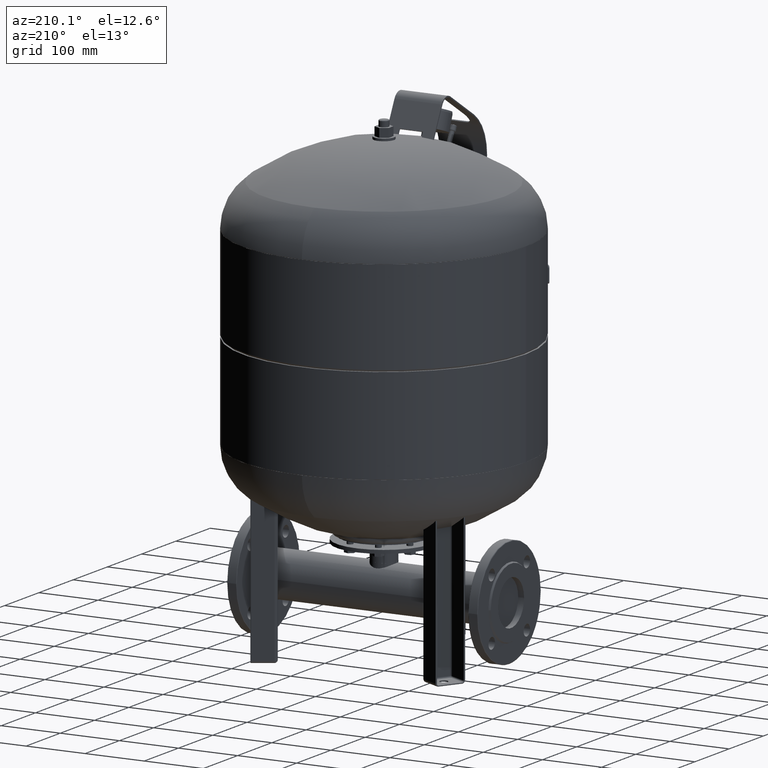
[diagram: clean part render]
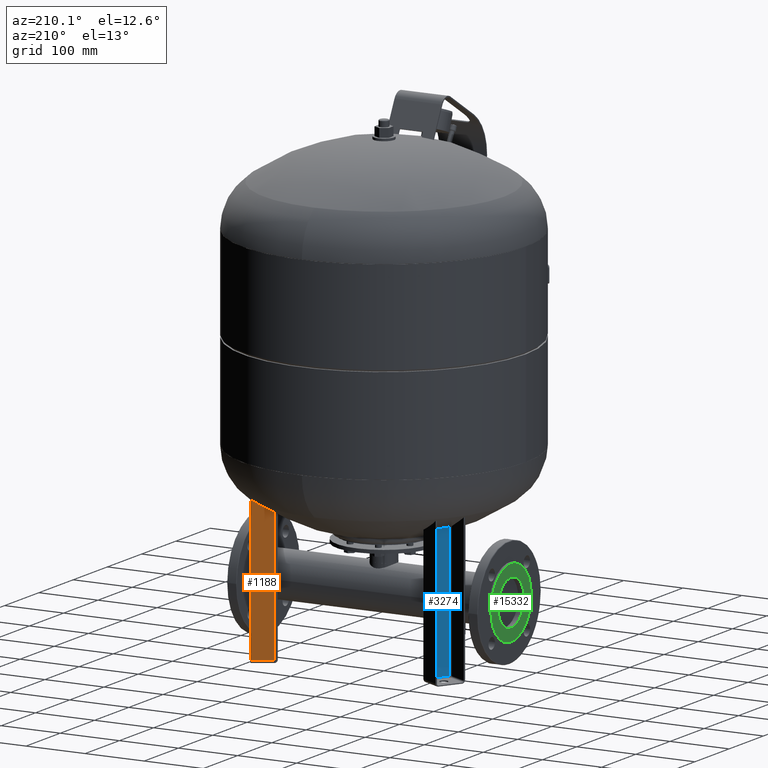
[diagram: same view with three faces highlighted in distinct colors, each labeled with its STEP entity id]
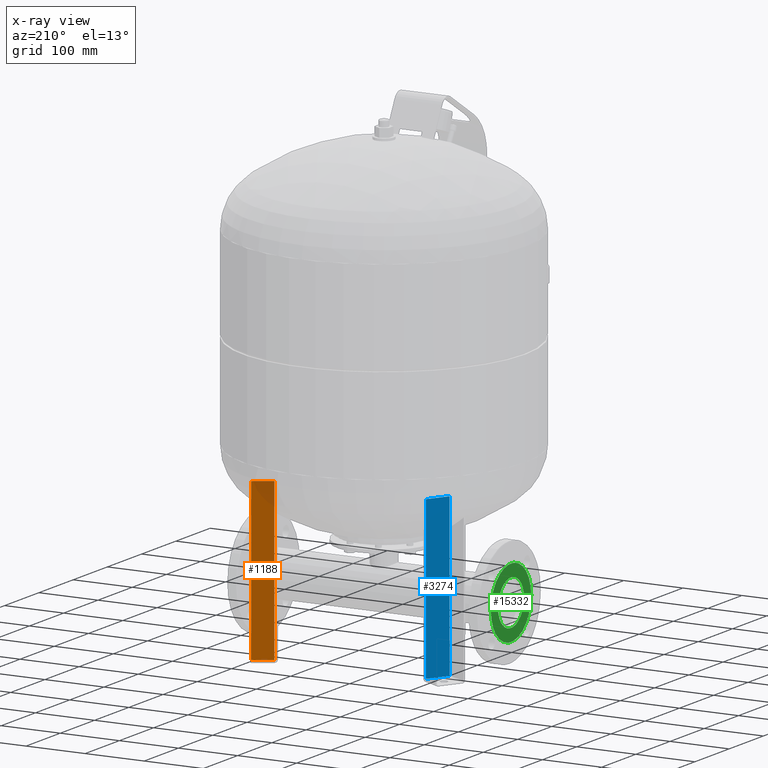
[diagram: x-ray of the same camera — body ghosted, the three highlighted faces saturated]
A machine part, auxiliary view with three faces highlighted in distinct colors.
The next image is the same camera in x-ray (body ghosted, the three faces saturated) — at least one of them is partly hidden behind the body in this view.
Their STEP definitions:

[orange] entity #1188 — the highlighted planar face has unit normal (-0.5, 0.866, 0).
#250=CARTESIAN_POINT('',(155.941941036073360,118.900635094610920,274.0));
#251=VERTEX_POINT('',#250);
#259=CARTESIAN_POINT('',(126.497077307402440,101.900635094610920,274.0));
#260=VERTEX_POINT('',#259);
#261=CARTESIAN_POINT('',(126.497077307402440,101.900635094610920,274.0));
#262=DIRECTION('',(0.866025403784439,0.500000000000000,0.0));
#263=VECTOR('',#262,34.000000000000007);
#264=LINE('',#261,#263);
#265=EDGE_CURVE('',#260,#251,#264,.T.);
#695=CARTESIAN_POINT('',(155.941941036073330,118.900635094610920,5.000000000000004));
#696=VERTEX_POINT('',#695);
#723=CARTESIAN_POINT('',(155.941941036073330,118.900635094610920,5.000000000000004));
#724=DIRECTION('',(0.0,0.0,1.0));
#725=VECTOR('',#724,269.0);
#726=LINE('',#723,#725);
#727=EDGE_CURVE('',#696,#251,#726,.T.);
#923=CARTESIAN_POINT('',(126.497077307402440,101.900635094610920,5.000000000000004));
#924=VERTEX_POINT('',#923);
#932=CARTESIAN_POINT('',(126.497077307402440,101.900635094610920,5.000000000000004));
#933=DIRECTION('',(0.866025403784438,0.500000000000000,0.0));
#934=VECTOR('',#933,33.999999999999986);
#935=LINE('',#932,#934);
#936=EDGE_CURVE('',#924,#696,#935,.T.);
#1058=CARTESIAN_POINT('',(126.497077307402440,101.900635094610920,5.000000000000004));
#1059=DIRECTION('',(0.0,0.0,1.0));
#1060=VECTOR('',#1059,269.0);
#1061=LINE('',#1058,#1060);
#1062=EDGE_CURVE('',#924,#260,#1061,.T.);
#1177=CARTESIAN_POINT('',(122.166950288480240,99.400635094610919,4.592425E-015));
#1178=DIRECTION('',(-0.500000000000000,0.866025403784439,1.836970E-016));
#1179=DIRECTION('',(-0.866025403784439,-0.500000000000000,-2.039447E-032));
#1180=AXIS2_PLACEMENT_3D('',#1177,#1178,#1179);
#1181=PLANE('',#1180);
#1182=ORIENTED_EDGE('',*,*,#727,.F.);
#1183=ORIENTED_EDGE('',*,*,#936,.F.);
#1184=ORIENTED_EDGE('',*,*,#1062,.T.);
#1185=ORIENTED_EDGE('',*,*,#265,.T.);
#1186=EDGE_LOOP('',(#1182,#1183,#1184,#1185));
#1187=FACE_OUTER_BOUND('',#1186,.T.);
#1188=ADVANCED_FACE('',(#1187),#1181,.T.);

[blue] entity #3274 — the highlighted planar face has unit normal (0.866, -0.5, -0).
#2327=CARTESIAN_POINT('',(-126.832013797941230,96.320508075688835,274.0));
#2328=VERTEX_POINT('',#2327);
#2336=CARTESIAN_POINT('',(-146.832013797941220,61.679491924311279,274.0));
#2337=VERTEX_POINT('',#2336);
#2338=CARTESIAN_POINT('',(-146.832013797941220,61.679491924311279,274.0));
#2339=DIRECTION('',(0.500000000000000,0.866025403784439,0.0));
#2340=VECTOR('',#2339,40.0);
#2341=LINE('',#2338,#2340);
#2342=EDGE_CURVE('',#2337,#2328,#2341,.T.);
#2879=CARTESIAN_POINT('',(-146.832013797941220,61.679491924311286,4.500000000000004));
#2880=VERTEX_POINT('',#2879);
#2888=CARTESIAN_POINT('',(-126.832013797941230,96.320508075688835,4.499999999999996));
#2889=VERTEX_POINT('',#2888);
#2890=CARTESIAN_POINT('',(-146.832013797941220,61.679491924311286,4.500000000000004));
#2891=DIRECTION('',(0.500000000000000,0.866025403784439,-1.776357E-016));
#2892=VECTOR('',#2891,39.999999999999993);
#2893=LINE('',#2890,#2892);
#2894=EDGE_CURVE('',#2880,#2889,#2893,.T.);
#3247=CARTESIAN_POINT('',(-126.832013797941230,96.320508075688835,4.499999999999996));
#3248=DIRECTION('',(0.0,0.0,1.0));
#3249=VECTOR('',#3248,269.500000000000000);
#3250=LINE('',#3247,#3249);
#3251=EDGE_CURVE('',#2889,#2328,#3250,.T.);
#3258=CARTESIAN_POINT('',(-125.582013797941230,98.485571585149927,1.999999999999996));
#3259=DIRECTION('',(0.866025403784439,-0.500000000000000,-5.438524E-032));
#3260=DIRECTION('',(0.500000000000000,0.866025403784439,-1.836970E-016));
#3261=AXIS2_PLACEMENT_3D('',#3258,#3259,#3260);
#3262=PLANE('',#3261);
#3263=ORIENTED_EDGE('',*,*,#2894,.F.);
#3264=CARTESIAN_POINT('',(-146.832013797941220,61.679491924311279,274.0));
#3265=DIRECTION('',(0.0,0.0,-1.0));
#3266=VECTOR('',#3265,269.500000000000000);
#3267=LINE('',#3264,#3266);
#3268=EDGE_CURVE('',#2337,#2880,#3267,.T.);
#3269=ORIENTED_EDGE('',*,*,#3268,.F.);
#3270=ORIENTED_EDGE('',*,*,#2342,.T.);
#3271=ORIENTED_EDGE('',*,*,#3251,.F.);
#3272=EDGE_LOOP('',(#3263,#3269,#3270,#3271));
#3273=FACE_OUTER_BOUND('',#3272,.T.);
#3274=ADVANCED_FACE('',(#3273),#3262,.F.);

[green] entity #15332 — the highlighted face is a freeform B-spline surface patch.
#14265=CARTESIAN_POINT('',(-215.0,-59.0,110.0));
#14266=VERTEX_POINT('',#14265);
#14282=CARTESIAN_POINT('',(-215.0,59.000000000000007,109.999999999999990));
#14283=VERTEX_POINT('',#14282);
#14290=CARTESIAN_POINT('',(-215.0,0.0,110.0));
#14291=DIRECTION('',(1.0,0.0,0.0));
#14292=DIRECTION('',(0.0,-1.0,0.0));
#14293=AXIS2_PLACEMENT_3D('',#14290,#14291,#14292);
#14294=CIRCLE('',#14293,59.0);
#14295=EDGE_CURVE('',#14283,#14266,#14294,.T.);
#14807=CARTESIAN_POINT('',(-215.0,-38.049999999999997,110.0));
#14808=VERTEX_POINT('',#14807);
#14824=CARTESIAN_POINT('',(-215.0,38.049999999999997,110.0));
#14825=VERTEX_POINT('',#14824);
#14832=CARTESIAN_POINT('',(-215.0,0.0,110.0));
#14833=DIRECTION('',(-1.0,0.0,0.0));
#14834=DIRECTION('',(0.0,-1.0,0.0));
#14835=AXIS2_PLACEMENT_3D('',#14832,#14833,#14834);
#14836=CIRCLE('',#14835,38.049999999999997);
#14837=EDGE_CURVE('',#14825,#14808,#14836,.T.);
#14869=CARTESIAN_POINT('',(-215.0,0.0,110.0));
#14870=DIRECTION('',(-1.0,0.0,0.0));
#14871=DIRECTION('',(0.0,-1.0,0.0));
#14872=AXIS2_PLACEMENT_3D('',#14869,#14870,#14871);
#14873=CIRCLE('',#14872,38.049999999999997);
#14874=EDGE_CURVE('',#14808,#14825,#14873,.T.);
#15307=CARTESIAN_POINT('',(-215.0,0.0,110.0));
#15308=DIRECTION('',(1.0,0.0,0.0));
#15309=DIRECTION('',(0.0,-1.0,0.0));
#15310=AXIS2_PLACEMENT_3D('',#15307,#15308,#15309);
#15311=CIRCLE('',#15310,59.0);
#15312=EDGE_CURVE('',#14266,#14283,#15311,.T.);
#15319=CARTESIAN_POINT('',(-215.0,59.0,51.0));
#15320=CARTESIAN_POINT('',(-215.000000000000030,-59.0,51.0));
#15321=CARTESIAN_POINT('',(-215.000000000000030,59.0,169.0));
#15322=CARTESIAN_POINT('',(-215.000000000000060,-59.0,169.0));
#15323=B_SPLINE_SURFACE_WITH_KNOTS('',1,1,((#15319,#15321),(#15320,#15322)),.UNSPECIFIED.,.F.,.F.,.U.,(2,2),(2,2),(0.0,118.0),(0.0,118.0),.UNSPECIFIED.);
#15324=ORIENTED_EDGE('',*,*,#15312,.F.);
#15325=ORIENTED_EDGE('',*,*,#14295,.F.);
#15326=EDGE_LOOP('',(#15324,#15325));
#15327=FACE_OUTER_BOUND('',#15326,.T.);
#15328=ORIENTED_EDGE('',*,*,#14874,.F.);
#15329=ORIENTED_EDGE('',*,*,#14837,.F.);
#15330=EDGE_LOOP('',(#15328,#15329));
#15331=FACE_BOUND('',#15330,.T.);
#15332=ADVANCED_FACE('',(#15327,#15331),#15323,.T.);